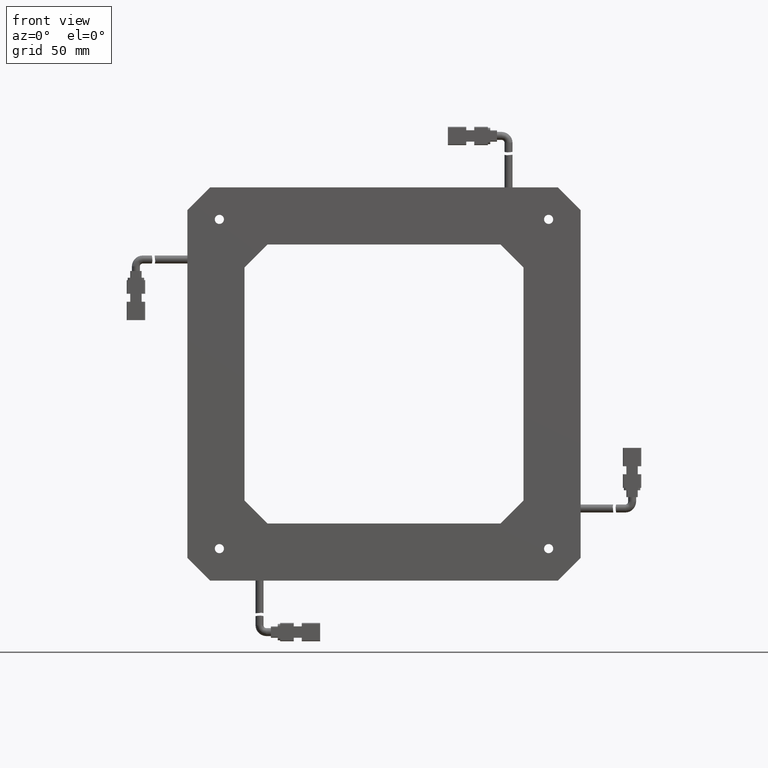
[diagram: clean part render]
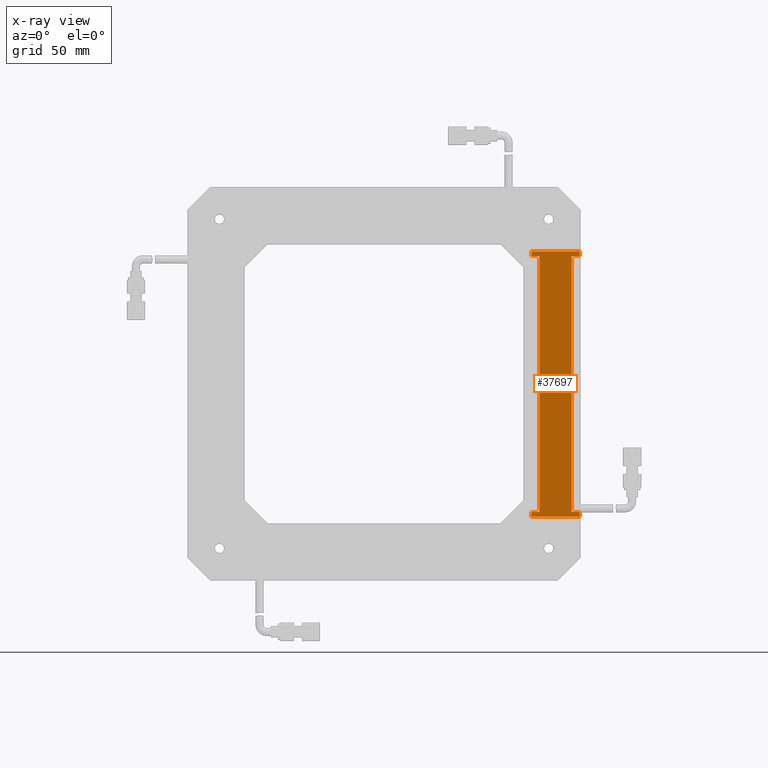
[diagram: x-ray — body ghosted, one internal face saturated and labeled with its STEP entity id]
A machine part, front view, then the same camera in x-ray: the body is ghosted and one INTERNAL B-rep face — a face not visible from any outside direction — is saturated and labeled: STEP entity #37697.
In plain terms, the highlighted planar face has unit normal (0, -1, 0).
Its self-contained STEP definition (entity closure, byte-faithful):
#1522 = DIRECTION ( 'NONE',  ( 0.0000000000000000000, -0.0000000000000000000, -1.000000000000000000 ) ) ;
#1662 = CARTESIAN_POINT ( 'NONE',  ( 85.50000000000048300, 9.899999999999977300, 57.99999999999975100 ) ) ;
#2699 = CARTESIAN_POINT ( 'NONE',  ( 64.50000000000048300, 9.899999999999979000, 57.99999999999973700 ) ) ;
#3684 = CARTESIAN_POINT ( 'NONE',  ( 85.50000000000048300, 9.899999999999977300, -56.00000000000027700 ) ) ;
#3895 = EDGE_CURVE ( 'NONE', #108397, #63029, #43248, .T. ) ;
#6478 = DIRECTION ( 'NONE',  ( -1.000000000000000000, -0.0000000000000000000, -0.0000000000000000000 ) ) ;
#6736 = LINE ( 'NONE', #68585, #114785 ) ;
#9187 = EDGE_CURVE ( 'NONE', #48051, #37225, #12711, .T. ) ;
#10226 = VERTEX_POINT ( 'NONE', #3684 ) ;
#11379 = EDGE_CURVE ( 'NONE', #30473, #10226, #125031, .T. ) ;
#11782 = CARTESIAN_POINT ( 'NONE',  ( 85.50000000000048300, 9.899999999999977300, 55.99999999999975100 ) ) ;
#12711 = LINE ( 'NONE', #125406, #65065 ) ;
#13533 = CARTESIAN_POINT ( 'NONE',  ( 85.50000000000048300, 9.899999999999979000, 57.99999999999973700 ) ) ;
#13547 = VECTOR ( 'NONE', #32535, 1000.000000000000000 ) ;
#14079 = CARTESIAN_POINT ( 'NONE',  ( 82.00000000000046900, 9.899999999999979000, 55.99999999999974400 ) ) ;
#14298 = VECTOR ( 'NONE', #90132, 1000.000000000000000 ) ;
#16111 = EDGE_CURVE ( 'NONE', #40610, #64017, #113452, .T. ) ;
#16595 = CARTESIAN_POINT ( 'NONE',  ( 85.50000000000048300, 9.899999999999977300, -58.00000000000027000 ) ) ;
#16898 = DIRECTION ( 'NONE',  ( 1.000000000000000000, 0.0000000000000000000, 0.0000000000000000000 ) ) ;
#18653 = EDGE_CURVE ( 'NONE', #90157, #113895, #120702, .T. ) ;
#20780 = EDGE_LOOP ( 'NONE', ( #46560, #72322, #67350, #30395, #80173, #60087, #126100, #101184, #45307, #105132, #126350, #69306 ) ) ;
#28509 = EDGE_CURVE ( 'NONE', #64017, #90157, #41344, .T. ) ;
#29947 = VECTOR ( 'NONE', #53717, 1000.000000000000000 ) ;
#30395 = ORIENTED_EDGE ( 'NONE', *, *, #104205, .F. ) ;
#30473 = VERTEX_POINT ( 'NONE', #16595 ) ;
#32535 = DIRECTION ( 'NONE',  ( -1.000000000000000000, -0.0000000000000000000, -0.0000000000000000000 ) ) ;
#37225 = VERTEX_POINT ( 'NONE', #14079 ) ;
#37697 = ADVANCED_FACE ( 'NONE', ( #104177 ), #74353, .F. ) ;
#40602 = VECTOR ( 'NONE', #16898, 1000.000000000000000 ) ;
#40610 = VERTEX_POINT ( 'NONE', #90684 ) ;
#41344 = LINE ( 'NONE', #84764, #13547 ) ;
#41570 = VECTOR ( 'NONE', #65639, 1000.000000000000000 ) ;
#43199 = CARTESIAN_POINT ( 'NONE',  ( 68.00000000000048300, 9.899999999999979000, 57.99999999999973700 ) ) ;
#43248 = LINE ( 'NONE', #69680, #98994 ) ;
#45307 = ORIENTED_EDGE ( 'NONE', *, *, #46546, .F. ) ;
#46546 = EDGE_CURVE ( 'NONE', #113895, #30473, #125588, .T. ) ;
#46560 = ORIENTED_EDGE ( 'NONE', *, *, #67407, .F. ) ;
#48051 = VERTEX_POINT ( 'NONE', #86912 ) ;
#49058 = LINE ( 'NONE', #60082, #104784 ) ;
#52210 = DIRECTION ( 'NONE',  ( -0.0000000000000000000, 0.0000000000000000000, 1.000000000000000000 ) ) ;
#53717 = DIRECTION ( 'NONE',  ( 0.0000000000000000000, -0.0000000000000000000, -1.000000000000000000 ) ) ;
#54175 = CARTESIAN_POINT ( 'NONE',  ( 64.50000000000048300, 9.899999999999977300, -58.00000000000027000 ) ) ;
#55521 = AXIS2_PLACEMENT_3D ( 'NONE', #126907, #64258, #1522 ) ;
#59335 = EDGE_CURVE ( 'NONE', #37225, #94411, #49058, .T. ) ;
#60082 = CARTESIAN_POINT ( 'NONE',  ( 75.00000000000048300, 9.899999999999979000, 55.99999999999974400 ) ) ;
#60087 = ORIENTED_EDGE ( 'NONE', *, *, #9187, .F. ) ;
#63029 = VERTEX_POINT ( 'NONE', #123513 ) ;
#64017 = VERTEX_POINT ( 'NONE', #112787 ) ;
#64258 = DIRECTION ( 'NONE',  ( 0.0000000000000000000, -1.000000000000000000, 0.0000000000000000000 ) ) ;
#65065 = VECTOR ( 'NONE', #52210, 1000.000000000000000 ) ;
#65639 = DIRECTION ( 'NONE',  ( -0.0000000000000000000, 0.0000000000000000000, 1.000000000000000000 ) ) ;
#66807 = VECTOR ( 'NONE', #107582, 1000.000000000000000 ) ;
#67350 = ORIENTED_EDGE ( 'NONE', *, *, #3895, .F. ) ;
#67407 = EDGE_CURVE ( 'NONE', #85226, #40610, #124053, .T. ) ;
#68585 = CARTESIAN_POINT ( 'NONE',  ( 85.50000000000048300, 9.899999999999979000, 57.99999999999973700 ) ) ;
#69306 = ORIENTED_EDGE ( 'NONE', *, *, #16111, .F. ) ;
#69680 = CARTESIAN_POINT ( 'NONE',  ( 75.00000000000048300, 9.899999999999979000, 57.99999999999974400 ) ) ;
#72322 = ORIENTED_EDGE ( 'NONE', *, *, #90490, .F. ) ;
#74353 = PLANE ( 'NONE',  #55521 ) ;
#79346 = DIRECTION ( 'NONE',  ( -1.000000000000000000, -0.0000000000000000000, -0.0000000000000000000 ) ) ;
#79600 = CARTESIAN_POINT ( 'NONE',  ( 75.00000000000048300, 9.899999999999979000, -58.00000000000027000 ) ) ;
#80173 = ORIENTED_EDGE ( 'NONE', *, *, #59335, .F. ) ;
#83412 = CARTESIAN_POINT ( 'NONE',  ( 64.50000000000048300, 9.899999999999977300, 55.99999999999975100 ) ) ;
#84764 = CARTESIAN_POINT ( 'NONE',  ( 75.00000000000048300, 9.899999999999979000, -56.00000000000027700 ) ) ;
#85226 = VERTEX_POINT ( 'NONE', #83412 ) ;
#86912 = CARTESIAN_POINT ( 'NONE',  ( 82.00000000000046900, 9.899999999999979000, -56.00000000000027700 ) ) ;
#90132 = DIRECTION ( 'NONE',  ( 1.000000000000000000, 0.0000000000000000000, 0.0000000000000000000 ) ) ;
#90157 = VERTEX_POINT ( 'NONE', #111754 ) ;
#90490 = EDGE_CURVE ( 'NONE', #63029, #85226, #122487, .T. ) ;
#90684 = CARTESIAN_POINT ( 'NONE',  ( 68.00000000000048300, 9.899999999999979000, 55.99999999999974400 ) ) ;
#92896 = VECTOR ( 'NONE', #94101, 1000.000000000000000 ) ;
#94101 = DIRECTION ( 'NONE',  ( 0.0000000000000000000, -0.0000000000000000000, -1.000000000000000000 ) ) ;
#94411 = VERTEX_POINT ( 'NONE', #11782 ) ;
#98994 = VECTOR ( 'NONE', #6478, 1000.000000000000000 ) ;
#99377 = CARTESIAN_POINT ( 'NONE',  ( 75.00000000000048300, 9.899999999999979000, 55.99999999999974400 ) ) ;
#99742 = DIRECTION ( 'NONE',  ( -0.0000000000000000000, 0.0000000000000000000, 1.000000000000000000 ) ) ;
#101184 = ORIENTED_EDGE ( 'NONE', *, *, #11379, .F. ) ;
#104177 = FACE_OUTER_BOUND ( 'NONE', #20780, .T. ) ;
#104205 = EDGE_CURVE ( 'NONE', #94411, #108397, #6736, .T. ) ;
#104784 = VECTOR ( 'NONE', #133388, 1000.000000000000000 ) ;
#105132 = ORIENTED_EDGE ( 'NONE', *, *, #18653, .F. ) ;
#105177 = EDGE_CURVE ( 'NONE', #10226, #48051, #106249, .T. ) ;
#106249 = LINE ( 'NONE', #131479, #134091 ) ;
#107582 = DIRECTION ( 'NONE',  ( 0.0000000000000000000, -0.0000000000000000000, -1.000000000000000000 ) ) ;
#108397 = VERTEX_POINT ( 'NONE', #1662 ) ;
#111754 = CARTESIAN_POINT ( 'NONE',  ( 64.50000000000048300, 9.899999999999977300, -56.00000000000027700 ) ) ;
#112787 = CARTESIAN_POINT ( 'NONE',  ( 68.00000000000048300, 9.899999999999979000, -56.00000000000027700 ) ) ;
#113452 = LINE ( 'NONE', #43199, #29947 ) ;
#113895 = VERTEX_POINT ( 'NONE', #54175 ) ;
#114785 = VECTOR ( 'NONE', #99742, 1000.000000000000000 ) ;
#115027 = CARTESIAN_POINT ( 'NONE',  ( 64.50000000000048300, 9.899999999999979000, 57.99999999999973700 ) ) ;
#120702 = LINE ( 'NONE', #115027, #92896 ) ;
#122487 = LINE ( 'NONE', #2699, #66807 ) ;
#123513 = CARTESIAN_POINT ( 'NONE',  ( 64.50000000000048300, 9.899999999999977300, 57.99999999999975100 ) ) ;
#124053 = LINE ( 'NONE', #99377, #40602 ) ;
#125031 = LINE ( 'NONE', #13533, #41570 ) ;
#125406 = CARTESIAN_POINT ( 'NONE',  ( 82.00000000000046900, 9.899999999999979000, 57.99999999999973700 ) ) ;
#125588 = LINE ( 'NONE', #79600, #14298 ) ;
#126100 = ORIENTED_EDGE ( 'NONE', *, *, #105177, .F. ) ;
#126350 = ORIENTED_EDGE ( 'NONE', *, *, #28509, .F. ) ;
#126907 = CARTESIAN_POINT ( 'NONE',  ( 75.00000000000048300, 9.899999999999979000, 57.99999999999973700 ) ) ;
#131479 = CARTESIAN_POINT ( 'NONE',  ( 75.00000000000048300, 9.899999999999979000, -56.00000000000027700 ) ) ;
#133388 = DIRECTION ( 'NONE',  ( 1.000000000000000000, 0.0000000000000000000, 0.0000000000000000000 ) ) ;
#134091 = VECTOR ( 'NONE', #79346, 1000.000000000000000 ) ;